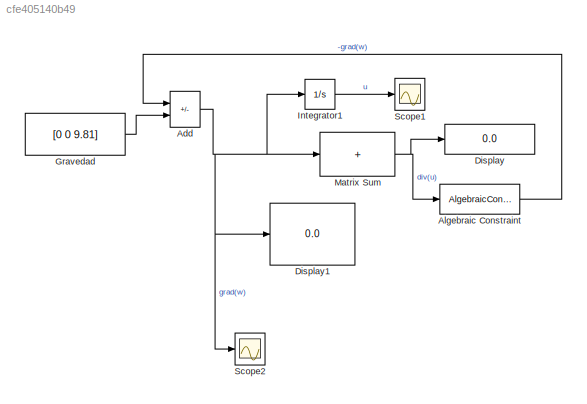
MODEL slx_cfe405140b49
KIND model
CONFIG AbsTol = auto
CONFIG EnableMultiTasking = off
CONFIG FixedStep = auto
CONFIG MaxStep = auto
CONFIG MinStep = auto
CONFIG RelTol = 1e-3
CONFIG SampleTimeConstraint = Unconstrained
CONFIG SolverName = VariableStepAuto
CONFIG StartTime = 0.0
CONFIG StopTime = 10.0
WORKSPACE source: mxarray member
WORKSPACE gradvel = [6 3 5]
BLOCK [Sum] Add
  IconShape = rectangular
  Inputs = -+
BLOCK [AlgebraicConstraint] Algebraic Constraint
BLOCK [Display] Display
  Decimation = 1
BLOCK [Display] Display1
  Decimation = 1
BLOCK [Constant] Gravedad
  Value = [0 0 9.81]
BLOCK [Integrator] Integrator1
  InitialCondition = [3,2,1]
BLOCK [Sum] Matrix Sum
  IconShape = rectangular
  Inputs = +
BLOCK [Scope] Scope1
  Floating = off
  NumInputPorts = 1
  ScopeSpecificationString = Simulink.scopes.TimeScopeBlockCfg('CurrentConfiguration', extmgr.ConfigurationSet(extmgr.Configuration('Core','General UI',true),extmgr.Configuration('Core','Source UI',true),extmgr.Configuration('Sources','WiredSimulink',true,'DataLoggingVariableName','ScopeData1'),extmgr.Configuration('Visuals','Time Domain',true,'SerializedDisplays',{struct('MinYLimReal','-42.8375','MaxYLimReal','78.5375','YLab...<+1429ch>
BLOCK [Scope] Scope2
  Floating = off
  NumInputPorts = 1
  ScopeSpecificationString = Simulink.scopes.TimeScopeBlockCfg('CurrentConfiguration', extmgr.ConfigurationSet(extmgr.Configuration('Core','General UI',true),extmgr.Configuration('Core','Source UI',true),extmgr.Configuration('Sources','WiredSimulink',true,'DataLoggingVariableName','ScopeData1'),extmgr.Configuration('Visuals','Time Domain',true,'SerializedDisplays',{struct('MinYLimReal','2.27','MaxYLimReal','4.27','YLabelReal'...<+1396ch>
NET Add:1 -> Display1:1, Integrator1:1, Matrix Sum:1, Scope2:1
LINE Algebraic Constraint:1 -> Add:1
LINE Gravedad:1 -> Add:2
LINE Integrator1:1 -> Scope1:1
NET Matrix Sum:1 -> Algebraic Constraint:1, Display:1
note: NET lines group one-source signal fan-out (src -> all destinations, sorted); 1:1 wires keep LINE
